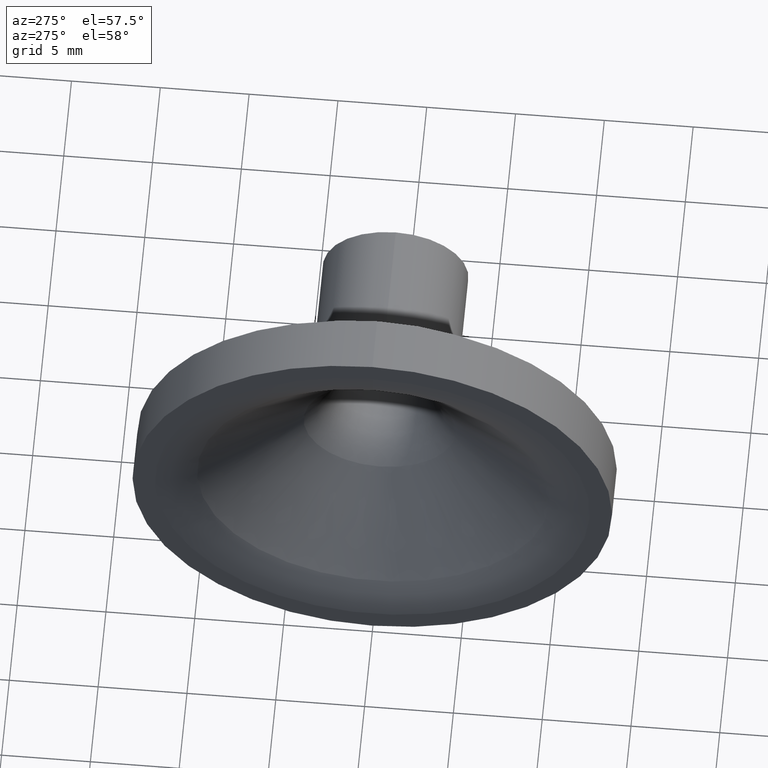
[diagram: clean part render]
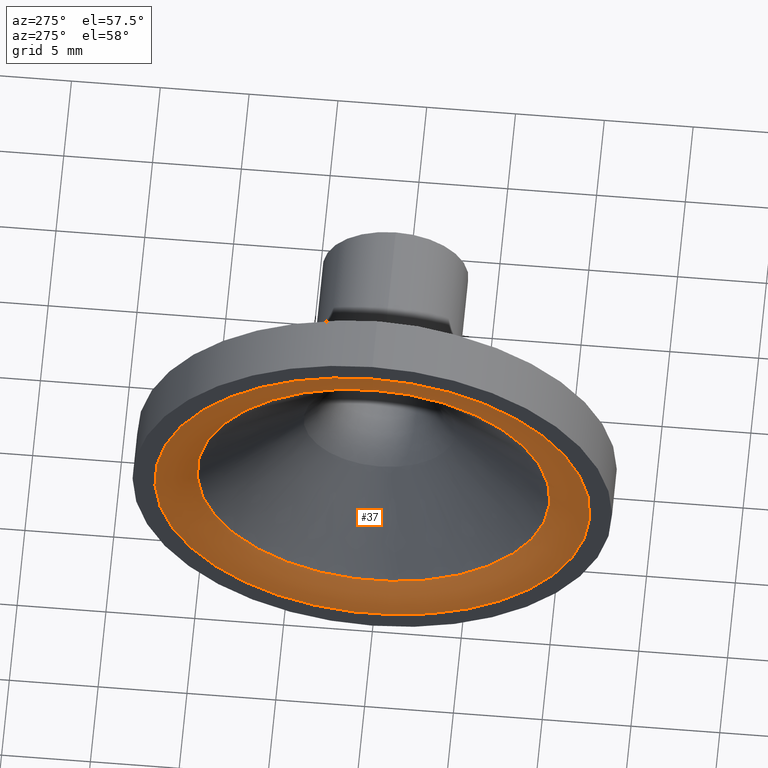
[diagram: same view with one face highlighted and labeled with its STEP entity id]
A machine part, auxiliary view. The second image highlights one B-rep face of the part: STEP entity #37.
In plain terms, the highlighted toroidal blend (fillet) surface has major radius 12.25 mm and minor (blend) radius 4 mm.
Its self-contained STEP definition (entity closure, byte-faithful):
#37 = ADVANCED_FACE( '', ( #80, #81 ), #82, .T. );
#80 = FACE_OUTER_BOUND( '', #139, .T. );
#81 = FACE_OUTER_BOUND( '', #140, .T. );
#82 = TOROIDAL_SURFACE( '', #141, 12.2500000000000, 4.00000000000000 );
#139 = EDGE_LOOP( '', ( #192 ) );
#140 = EDGE_LOOP( '', ( #193 ) );
#141 = AXIS2_PLACEMENT_3D( '', #194, #195, #196 );
#192 = ORIENTED_EDGE( '', *, *, #270, .T. );
#193 = ORIENTED_EDGE( '', *, *, #271, .F. );
#194 = CARTESIAN_POINT( '', ( -11.0000000000000, 0.000000000000000, 0.000000000000000 ) );
#195 = DIRECTION( '', ( -1.00000000000000, 0.000000000000000, 0.000000000000000 ) );
#196 = DIRECTION( '', ( 0.000000000000000, 0.000000000000000, 1.00000000000000 ) );
#270 = EDGE_CURVE( '', #296, #296, #297, .T. );
#271 = EDGE_CURVE( '', #298, #298, #299, .T. );
#296 = VERTEX_POINT( '', #335 );
#297 = CIRCLE( '', #336, 12.2500000000000 );
#298 = VERTEX_POINT( '', #337 );
#299 = CIRCLE( '', #338, 9.93873230233161 );
#335 = CARTESIAN_POINT( '', ( -15.0000000000000, 0.000000000000000, 12.2500000000000 ) );
#336 = AXIS2_PLACEMENT_3D( '', #373, #374, #375 );
#337 = CARTESIAN_POINT( '', ( -14.2646656229566, 0.000000000000000, 9.93873230233161 ) );
#338 = AXIS2_PLACEMENT_3D( '', #376, #377, #378 );
#373 = CARTESIAN_POINT( '', ( -15.0000000000000, 0.000000000000000, 0.000000000000000 ) );
#374 = DIRECTION( '', ( -1.00000000000000, 0.000000000000000, 0.000000000000000 ) );
#375 = DIRECTION( '', ( 0.000000000000000, 0.000000000000000, 1.00000000000000 ) );
#376 = CARTESIAN_POINT( '', ( -14.2646656229566, 0.000000000000000, 0.000000000000000 ) );
#377 = DIRECTION( '', ( -1.00000000000000, 0.000000000000000, 0.000000000000000 ) );
#378 = DIRECTION( '', ( 0.000000000000000, 0.000000000000000, 1.00000000000000 ) );